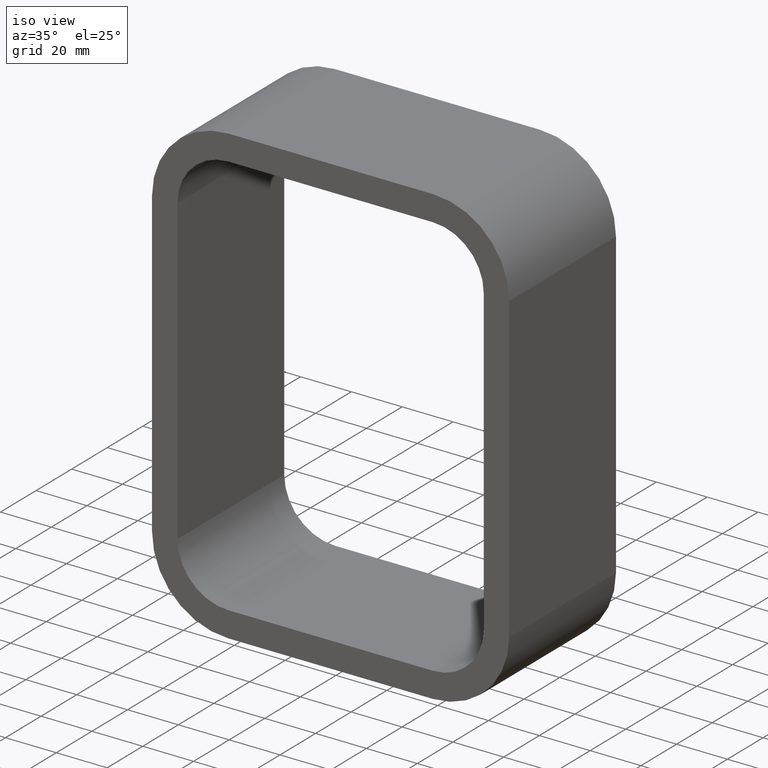
[diagram: clean part render]
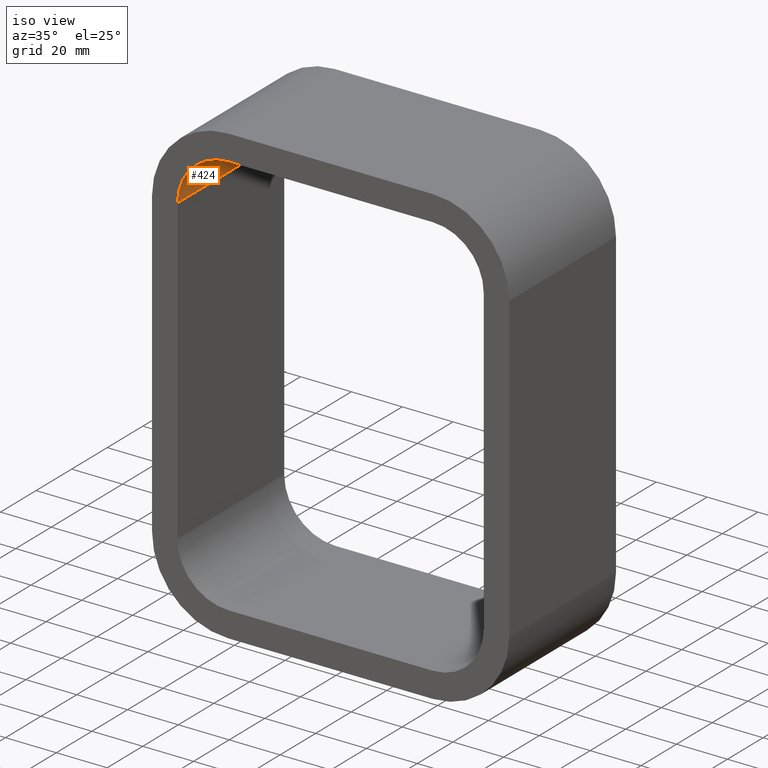
[diagram: same view with one face highlighted and labeled with its STEP entity id]
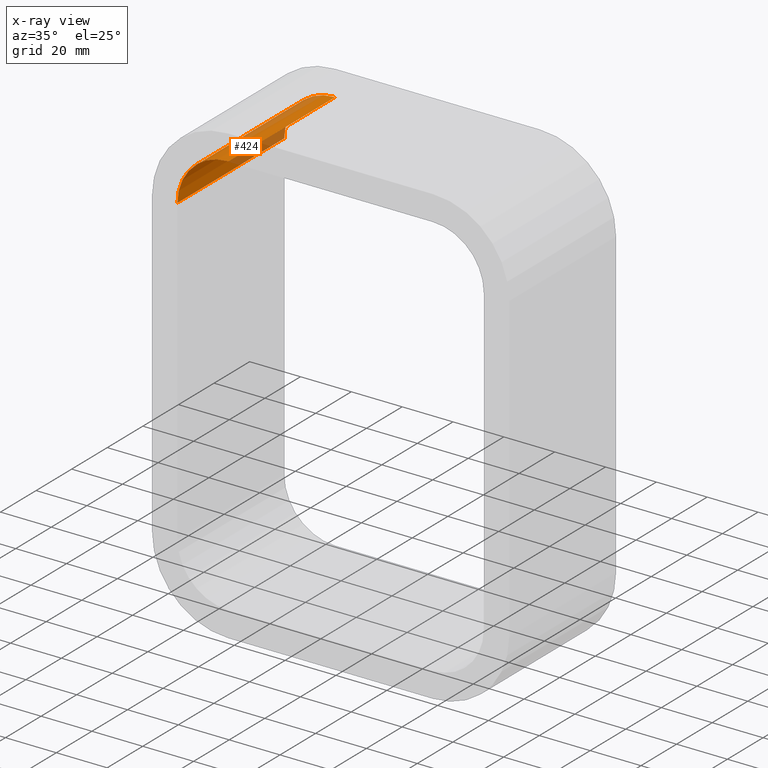
[diagram: x-ray of the same camera — body ghosted, the highlighted face saturated]
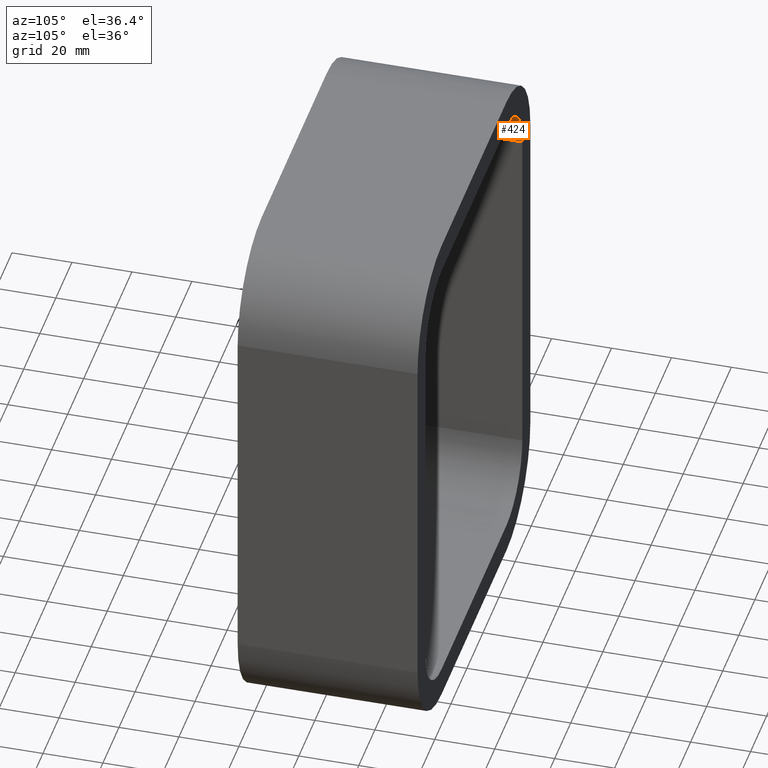
[diagram: same view with one face highlighted and labeled with its STEP entity id]
A machine part, iso view. The second image highlights one B-rep face of the part: STEP entity #424.
The next image is the same camera in x-ray: the body ghosted, the highlighted face saturated — about 30% of this face is hidden behind the body in this view.
A second angle (auxiliary view) of the same face is appended — the face is thin or edge-on in the first view.
In plain terms, the highlighted cylindrical surface (partial cylindrical patch) has radius 20 mm, axis along (0, 1, 0).
Its self-contained STEP definition (entity closure, byte-faithful):
#211=CARTESIAN_POINT('',(-60.250000000000014,-3.0,59.750000000000021));
#212=VERTEX_POINT('',#211);
#219=CARTESIAN_POINT('',(-40.250000000000014,-3.0,79.750000000000014));
#220=VERTEX_POINT('',#219);
#221=CARTESIAN_POINT('',(-40.250000000000014,-3.0,59.750000000000014));
#222=DIRECTION('',(0.0,-1.0,0.0));
#223=DIRECTION('',(-0.707106781186547,0.0,0.707106781186547));
#224=AXIS2_PLACEMENT_3D('',#221,#222,#223);
#225=CIRCLE('',#224,19.999999999999996);
#226=EDGE_CURVE('',#220,#212,#225,.T.);
#393=CARTESIAN_POINT('',(-40.250000000000014,0.0,59.750000000000014));
#394=DIRECTION('',(0.0,1.0,0.0));
#395=DIRECTION('',(-0.707106781186547,0.0,0.707106781186547));
#396=AXIS2_PLACEMENT_3D('',#393,#394,#395);
#397=CYLINDRICAL_SURFACE('',#396,20.0);
#398=ORIENTED_EDGE('',*,*,#226,.T.);
#399=CARTESIAN_POINT('',(-60.250000000000014,57.0,59.750000000000021));
#400=VERTEX_POINT('',#399);
#401=CARTESIAN_POINT('',(-60.250000000000014,-3.0,59.750000000000014));
#402=DIRECTION('',(0.0,1.0,0.0));
#403=VECTOR('',#402,60.0);
#404=LINE('',#401,#403);
#405=EDGE_CURVE('',#212,#400,#404,.T.);
#406=ORIENTED_EDGE('',*,*,#405,.T.);
#407=CARTESIAN_POINT('',(-40.250000000000014,57.0,79.750000000000014));
#408=VERTEX_POINT('',#407);
#409=CARTESIAN_POINT('',(-40.250000000000014,57.0,59.750000000000014));
#410=DIRECTION('',(0.0,1.0,0.0));
#411=DIRECTION('',(-0.707106781186547,0.0,0.707106781186547));
#412=AXIS2_PLACEMENT_3D('',#409,#410,#411);
#413=CIRCLE('',#412,19.999999999999996);
#414=EDGE_CURVE('',#400,#408,#413,.T.);
#415=ORIENTED_EDGE('',*,*,#414,.T.);
#416=CARTESIAN_POINT('',(-40.250000000000014,57.0,79.750000000000014));
#417=DIRECTION('',(0.0,-1.0,0.0));
#418=VECTOR('',#417,60.0);
#419=LINE('',#416,#418);
#420=EDGE_CURVE('',#408,#220,#419,.T.);
#421=ORIENTED_EDGE('',*,*,#420,.T.);
#422=EDGE_LOOP('',(#398,#406,#415,#421));
#423=FACE_OUTER_BOUND('',#422,.T.);
#424=ADVANCED_FACE('',(#423),#397,.F.);